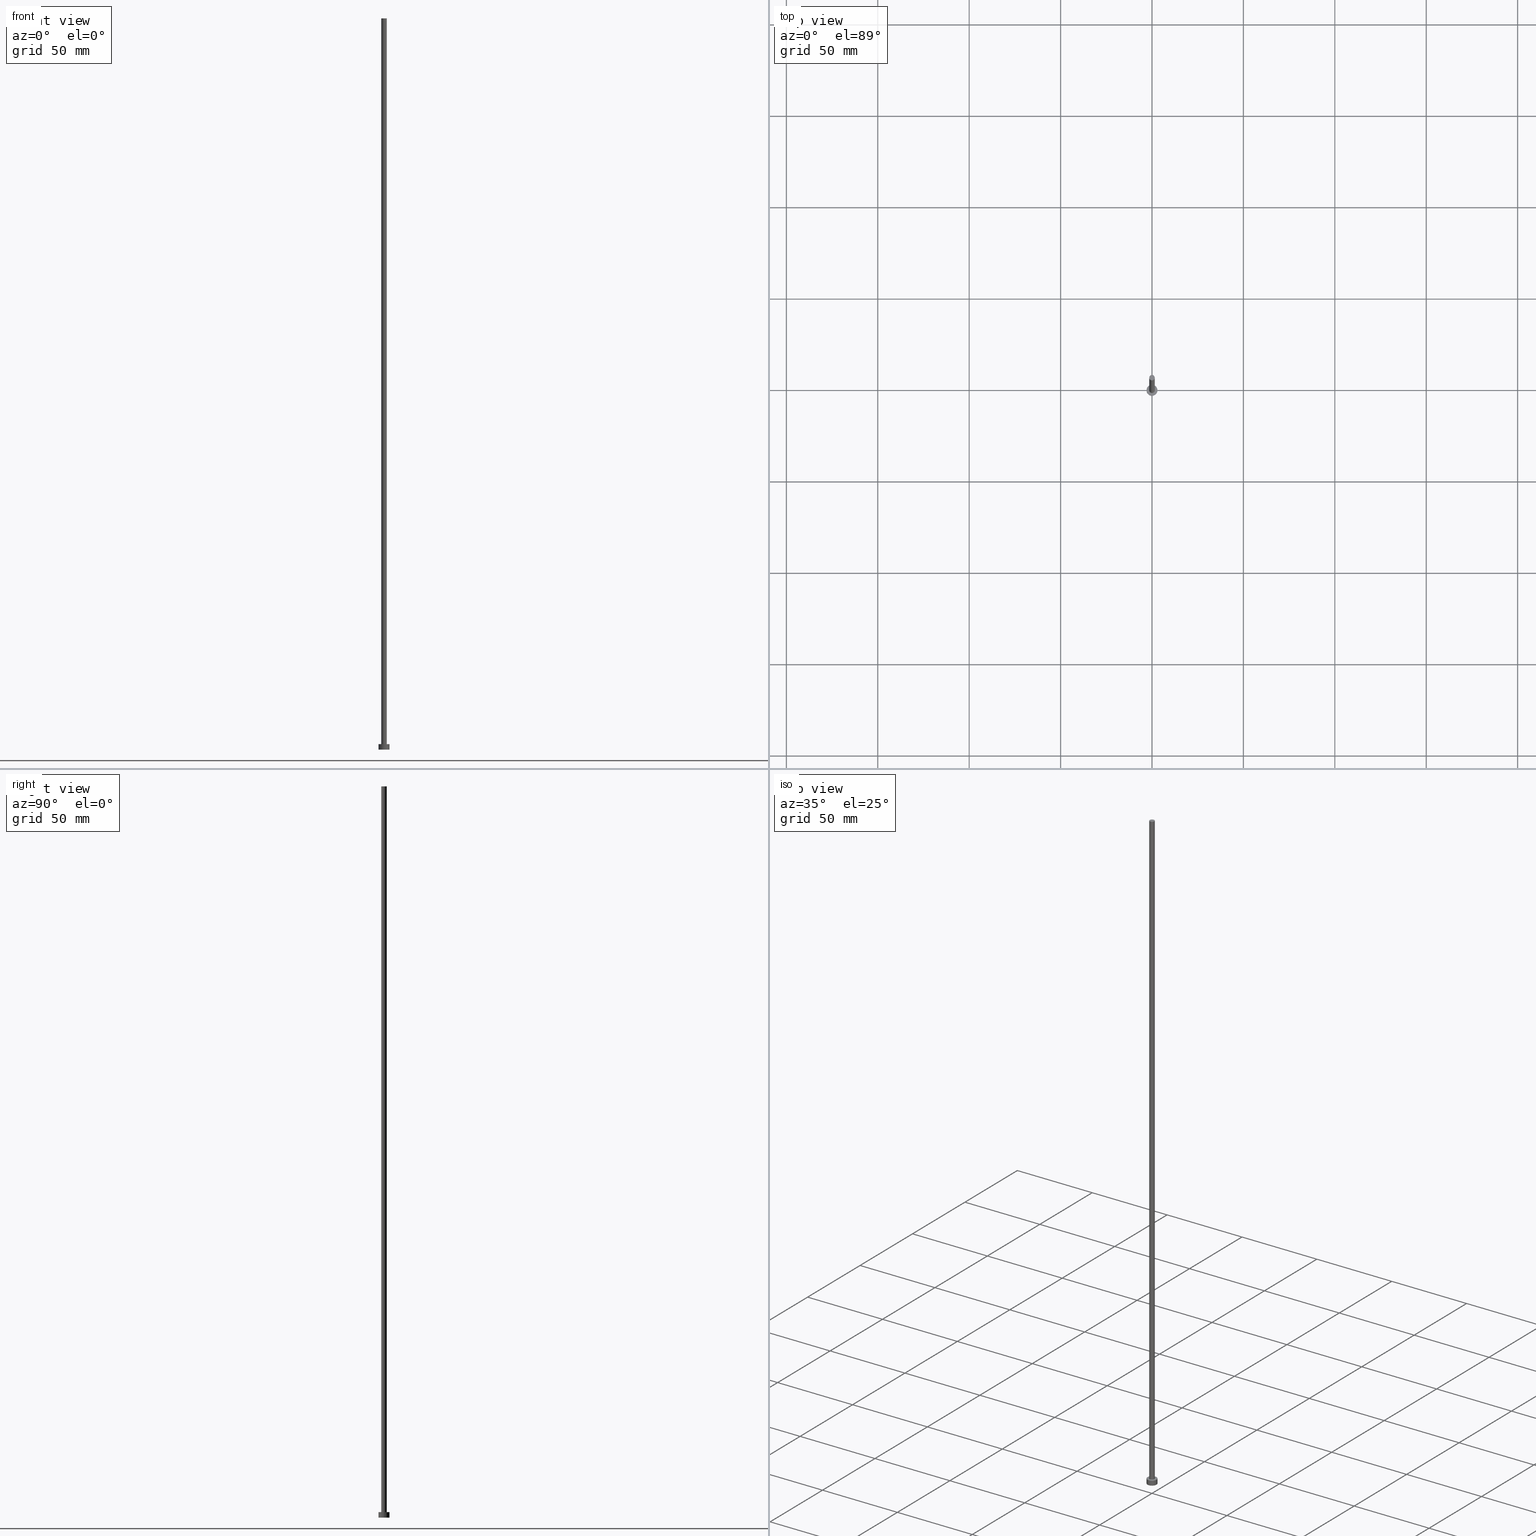
[diagram: canonical four-view strip — front | top / right | iso, engineering-drawing reading convention]
A machine part, canonical four-view strip (front | top / right | iso — engineering-drawing reading convention). The complete STEP part file that produces these views, byte-faithful:
ISO-10303-21;
HEADER;
FILE_DESCRIPTION (( 'STEP AP203' ),
    '1' );
FILE_NAME ('ec5e.STEP',
    '2023-02-13T14:26:13',
    ( '' ),
    ( '' ),
    'SwSTEP 2.0',
    'SolidWorks 2019',
    '' );
FILE_SCHEMA (( 'CONFIG_CONTROL_DESIGN' ));
ENDSEC;

DATA;
#1 = EDGE_LOOP ( 'NONE', ( #248, #34, #23, #120 ) ) ;
#2 = DIRECTION ( 'NONE',  ( 1.000000000000000000, 0.000000000000000000, 0.000000000000000000 ) ) ;
#3 = ORIENTED_EDGE ( 'NONE', *, *, #252, .T. ) ;
#4 = PRODUCT_RELATED_PRODUCT_CATEGORY ( 'detail', '', ( #121 ) ) ;
#5 = DIRECTION ( 'NONE',  ( 1.000000000000000000, 0.000000000000000000, -0.000000000000000000 ) ) ;
#6 = LOCAL_TIME ( 15, 26, 13.00000000000000000, #124 ) ;
#7 = COORDINATED_UNIVERSAL_TIME_OFFSET ( 1, 0, .AHEAD. ) ;
#8 = VERTEX_POINT ( 'NONE', #52 ) ;
#9 = APPROVAL_STATUS ( 'not_yet_approved' ) ;
#10 = VERTEX_POINT ( 'NONE', #224 ) ;
#11 = APPROVAL_STATUS ( 'not_yet_approved' ) ;
#12 = CLOSED_SHELL ( 'NONE', ( #140, #237, #18, #138, #64, #132, #181 ) ) ;
#13 = CC_DESIGN_PERSON_AND_ORGANIZATION_ASSIGNMENT ( #69, #53, ( #96 ) ) ;
#14 = PRODUCT_DEFINITION_FORMATION_WITH_SPECIFIED_SOURCE ( 'LIBOVOLN�', '', #121, .NOT_KNOWN. ) ;
#15 = CARTESIAN_POINT ( 'NONE',  ( 0.000000000000000000, 0.000000000000000000, 3.000000000000000000 ) ) ;
#16 = PERSON_AND_ORGANIZATION ( #162, #51 ) ;
#17 = CIRCLE ( 'NONE', #171, 3.000000000000000444 ) ;
#18 = ADVANCED_FACE ( 'NONE', ( #70 ), #59, .T. ) ;
#19 = AXIS2_PLACEMENT_3D ( 'NONE', #185, #146, #201 ) ;
#20 = CARTESIAN_POINT ( 'NONE',  ( 3.000000000000000444, 3.673940397442060361E-16, 3.000000000000000000 ) ) ;
#21 = CC_DESIGN_DATE_AND_TIME_ASSIGNMENT ( #89, #33, ( #154 ) ) ;
#22 = ORIENTED_EDGE ( 'NONE', *, *, #103, .F. ) ;
#23 = ORIENTED_EDGE ( 'NONE', *, *, #108, .T. ) ;
#24 = DIRECTION ( 'NONE',  ( -0.000000000000000000, -0.000000000000000000, -1.000000000000000000 ) ) ;
#25 = DATE_AND_TIME ( #196, #77 ) ;
#26 = ORIENTED_EDGE ( 'NONE', *, *, #44, .T. ) ;
#27 = PERSON_AND_ORGANIZATION ( #162, #51 ) ;
#28 = CARTESIAN_POINT ( 'NONE',  ( 0.000000000000000000, 0.000000000000000000, 0.000000000000000000 ) ) ;
#29 = MECHANICAL_CONTEXT ( 'NONE', #153, 'mechanical' ) ;
#30 = ORIENTED_EDGE ( 'NONE', *, *, #85, .T. ) ;
#31 = AXIS2_PLACEMENT_3D ( 'NONE', #190, #74, #112 ) ;
#32 = VECTOR ( 'NONE', #24, 1000.000000000000000 ) ;
#33 = DATE_TIME_ROLE ( 'classification_date' ) ;
#34 = ORIENTED_EDGE ( 'NONE', *, *, #57, .F. ) ;
#35 = EDGE_CURVE ( 'NONE', #8, #110, #134, .T. ) ;
#36 = DIRECTION ( 'NONE',  ( 1.000000000000000000, 0.000000000000000000, 0.000000000000000000 ) ) ;
#37 = DESIGN_CONTEXT ( 'detailed design', #183, 'design' ) ;
#38 = CARTESIAN_POINT ( 'NONE',  ( -1.500000000000000222, 0.000000000000000000, 3.000000000000000000 ) ) ;
#39 = SHAPE_DEFINITION_REPRESENTATION ( #195, #191 ) ;
#40 = CYLINDRICAL_SURFACE ( 'NONE', #250, 3.000000000000000444 ) ;
#41 = AXIS2_PLACEMENT_3D ( 'NONE', #136, #82, #2 ) ;
#42 = ORIENTED_EDGE ( 'NONE', *, *, #44, .F. ) ;
#43 = CARTESIAN_POINT ( 'NONE',  ( -3.000000000000000444, 0.000000000000000000, 3.000000000000000000 ) ) ;
#44 = EDGE_CURVE ( 'NONE', #169, #66, #168, .T. ) ;
#45 = ORIENTED_EDGE ( 'NONE', *, *, #108, .F. ) ;
#46 = CC_DESIGN_APPROVAL ( #113, ( #154 ) ) ;
#47 = DATE_AND_TIME ( #141, #65 ) ;
#48 = EDGE_LOOP ( 'NONE', ( #142, #92 ) ) ;
#49 = PERSON_AND_ORGANIZATION_ROLE ( 'classification_officer' ) ;
#50 = DIRECTION ( 'NONE',  ( 1.000000000000000000, 0.000000000000000000, 0.000000000000000000 ) ) ;
#51 = ORGANIZATION ( 'NEUR�EN�', 'NEUR�EN�', '' ) ;
#52 = CARTESIAN_POINT ( 'NONE',  ( 1.500000000000000222, 1.836970198721030181E-16, 3.000000000000000000 ) ) ;
#53 = PERSON_AND_ORGANIZATION_ROLE ( 'creator' ) ;
#54 = EDGE_LOOP ( 'NONE', ( #236, #218, #227, #45 ) ) ;
#55 = DATE_AND_TIME ( #225, #102 ) ;
#56 = DIRECTION ( 'NONE',  ( 0.000000000000000000, 0.000000000000000000, 1.000000000000000000 ) ) ;
#57 = EDGE_CURVE ( 'NONE', #221, #175, #107, .T. ) ;
#58 = AXIS2_PLACEMENT_3D ( 'NONE', #217, #178, #5 ) ;
#59 = CYLINDRICAL_SURFACE ( 'NONE', #31, 3.000000000000000444 ) ;
#60 = CYLINDRICAL_SURFACE ( 'NONE', #118, 1.500000000000000222 ) ;
#61 = EDGE_CURVE ( 'NONE', #66, #95, #91, .T. ) ;
#62 = DIRECTION ( 'NONE',  ( -1.000000000000000000, 0.000000000000000000, 0.000000000000000000 ) ) ;
#63 = CARTESIAN_POINT ( 'NONE',  ( 0.000000000000000000, 0.000000000000000000, 400.0000000000000000 ) ) ;
#64 = ADVANCED_FACE ( 'NONE', ( #182 ), #229, .F. ) ;
#65 = LOCAL_TIME ( 15, 26, 13.00000000000000000, #180 ) ;
#66 = VERTEX_POINT ( 'NONE', #163 ) ;
#67 = CARTESIAN_POINT ( 'NONE',  ( 1.500000000000000222, 1.836970198721030181E-16, 400.0000000000000000 ) ) ;
#68 = APPROVAL_DATE_TIME ( #55, #188 ) ;
#69 = PERSON_AND_ORGANIZATION ( #162, #51 ) ;
#70 = FACE_OUTER_BOUND ( 'NONE', #246, .T. ) ;
#71 = APPROVAL ( #11, 'NEUR�EN�' ) ;
#72 = DIRECTION ( 'NONE',  ( 1.000000000000000000, 0.000000000000000000, 0.000000000000000000 ) ) ;
#73 = APPROVAL_PERSON_ORGANIZATION ( #184, #71, #114 ) ;
#74 = DIRECTION ( 'NONE',  ( -0.000000000000000000, -0.000000000000000000, -1.000000000000000000 ) ) ;
#75 = DATE_AND_TIME ( #164, #6 ) ;
#76 = CC_DESIGN_PERSON_AND_ORGANIZATION_ASSIGNMENT ( #205, #49, ( #154 ) ) ;
#77 = LOCAL_TIME ( 15, 26, 13.00000000000000000, #122 ) ;
#78 = DIRECTION ( 'NONE',  ( -0.000000000000000000, -0.000000000000000000, -1.000000000000000000 ) ) ;
#79 = FACE_OUTER_BOUND ( 'NONE', #1, .T. ) ;
#80 = EDGE_CURVE ( 'NONE', #10, #169, #17, .T. ) ;
#81 = CARTESIAN_POINT ( 'NONE',  ( 0.000000000000000000, 0.000000000000000000, 400.0000000000000000 ) ) ;
#82 = DIRECTION ( 'NONE',  ( 0.000000000000000000, 0.000000000000000000, 1.000000000000000000 ) ) ;
#83 = EDGE_LOOP ( 'NONE', ( #123, #197 ) ) ;
#84 = VECTOR ( 'NONE', #78, 1000.000000000000000 ) ;
#85 = EDGE_CURVE ( 'NONE', #169, #10, #204, .T. ) ;
#86 = DIRECTION ( 'NONE',  ( 0.000000000000000000, 0.000000000000000000, 1.000000000000000000 ) ) ;
#87 = AXIS2_PLACEMENT_3D ( 'NONE', #63, #86, #106 ) ;
#88 = EDGE_LOOP ( 'NONE', ( #223, #3, #101, #42 ) ) ;
#89 = DATE_AND_TIME ( #111, #172 ) ;
#90 = DIRECTION ( 'NONE',  ( 1.000000000000000000, 0.000000000000000000, -0.000000000000000000 ) ) ;
#91 = CIRCLE ( 'NONE', #186, 3.000000000000000444 ) ;
#92 = ORIENTED_EDGE ( 'NONE', *, *, #157, .T. ) ;
#93 = DIRECTION ( 'NONE',  ( 1.000000000000000000, 0.000000000000000000, 0.000000000000000000 ) ) ;
#94 = APPROVAL_ROLE ( '' ) ;
#95 = VERTEX_POINT ( 'NONE', #165 ) ;
#96 = PRODUCT_DEFINITION ( 'NEZN�M�', '', #14, #37 ) ;
#97 = FACE_BOUND ( 'NONE', #83, .T. ) ;
#98 = APPROVAL_PERSON_ORGANIZATION ( #27, #113, #94 ) ;
#99 = CARTESIAN_POINT ( 'NONE',  ( 0.000000000000000000, 0.000000000000000000, 0.000000000000000000 ) ) ;
#100 = ORIENTED_EDGE ( 'NONE', *, *, #61, .F. ) ;
#101 = ORIENTED_EDGE ( 'NONE', *, *, #103, .T. ) ;
#102 = LOCAL_TIME ( 15, 26, 13.00000000000000000, #7 ) ;
#103 = EDGE_CURVE ( 'NONE', #95, #66, #137, .T. ) ;
#104 =( LENGTH_UNIT ( ) NAMED_UNIT ( * ) SI_UNIT ( .MILLI., .METRE. ) );
#105 = EDGE_LOOP ( 'NONE', ( #30, #177 ) ) ;
#106 = DIRECTION ( 'NONE',  ( 1.000000000000000000, 0.000000000000000000, 0.000000000000000000 ) ) ;
#107 = CIRCLE ( 'NONE', #249, 1.500000000000000222 ) ;
#108 = EDGE_CURVE ( 'NONE', #221, #110, #133, .T. ) ;
#109 = APPROVAL_ROLE ( '' ) ;
#110 = VERTEX_POINT ( 'NONE', #38 ) ;
#111 = CALENDAR_DATE ( 2023, 13, 2 ) ;
#112 = DIRECTION ( 'NONE',  ( -1.000000000000000000, 0.000000000000000000, 0.000000000000000000 ) ) ;
#113 = APPROVAL ( #115, 'NEUR�EN�' ) ;
#114 = APPROVAL_ROLE ( '' ) ;
#115 = APPROVAL_STATUS ( 'not_yet_approved' ) ;
#116 = VECTOR ( 'NONE', #242, 1000.000000000000000 ) ;
#117 = CARTESIAN_POINT ( 'NONE',  ( 0.000000000000000000, 0.000000000000000000, 400.0000000000000000 ) ) ;
#118 = AXIS2_PLACEMENT_3D ( 'NONE', #117, #212, #174 ) ;
#119 = DIRECTION ( 'NONE',  ( -0.000000000000000000, -0.000000000000000000, -1.000000000000000000 ) ) ;
#120 = ORIENTED_EDGE ( 'NONE', *, *, #226, .T. ) ;
#121 = PRODUCT ( 'ec5e', 'ec5e', '', ( #29 ) ) ;
#122 = COORDINATED_UNIVERSAL_TIME_OFFSET ( 1, 0, .AHEAD. ) ;
#123 = ORIENTED_EDGE ( 'NONE', *, *, #226, .F. ) ;
#124 = COORDINATED_UNIVERSAL_TIME_OFFSET ( 1, 0, .AHEAD. ) ;
#125 = DIRECTION ( 'NONE',  ( 0.000000000000000000, 0.000000000000000000, 1.000000000000000000 ) ) ;
#126 = PERSON_AND_ORGANIZATION_ROLE ( 'design_owner' ) ;
#127 = DIRECTION ( 'NONE',  ( 1.000000000000000000, 0.000000000000000000, 0.000000000000000000 ) ) ;
#128 = CARTESIAN_POINT ( 'NONE',  ( 0.000000000000000000, 0.000000000000000000, 0.000000000000000000 ) ) ;
#129 = SECURITY_CLASSIFICATION_LEVEL ( 'unclassified' ) ;
#130 = DIRECTION ( 'NONE',  ( 0.000000000000000000, 0.000000000000000000, 1.000000000000000000 ) ) ;
#131 = CIRCLE ( 'NONE', #87, 1.500000000000000222 ) ;
#132 = ADVANCED_FACE ( 'NONE', ( #79 ), #251, .T. ) ;
#133 = LINE ( 'NONE', #254, #84 ) ;
#134 = CIRCLE ( 'NONE', #214, 1.500000000000000222 ) ;
#135 = CC_DESIGN_PERSON_AND_ORGANIZATION_ASSIGNMENT ( #245, #189, ( #14 ) ) ;
#136 = CARTESIAN_POINT ( 'NONE',  ( 0.000000000000000000, 0.000000000000000000, 3.000000000000000000 ) ) ;
#137 = CIRCLE ( 'NONE', #192, 3.000000000000000444 ) ;
#138 = ADVANCED_FACE ( 'NONE', ( #97, #208 ), #211, .T. ) ;
#139 = CIRCLE ( 'NONE', #41, 1.500000000000000222 ) ;
#140 = ADVANCED_FACE ( 'NONE', ( #232 ), #60, .T. ) ;
#141 = CALENDAR_DATE ( 2023, 13, 2 ) ;
#142 = ORIENTED_EDGE ( 'NONE', *, *, #57, .T. ) ;
#143 = APPROVAL_DATE_TIME ( #75, #71 ) ;
#144 = CARTESIAN_POINT ( 'NONE',  ( 0.000000000000000000, 0.000000000000000000, 400.0000000000000000 ) ) ;
#145 = AXIS2_PLACEMENT_3D ( 'NONE', #210, #155, #233 ) ;
#146 = DIRECTION ( 'NONE',  ( 0.000000000000000000, 0.000000000000000000, 1.000000000000000000 ) ) ;
#147 = CC_DESIGN_APPROVAL ( #188, ( #96 ) ) ;
#148 =( NAMED_UNIT ( * ) PLANE_ANGLE_UNIT ( ) SI_UNIT ( $, .RADIAN. ) );
#149 = DIRECTION ( 'NONE',  ( 0.000000000000000000, 0.000000000000000000, 1.000000000000000000 ) ) ;
#150 = AXIS2_PLACEMENT_3D ( 'NONE', #187, #167, #93 ) ;
#151 = DIRECTION ( 'NONE',  ( -0.000000000000000000, -0.000000000000000000, -1.000000000000000000 ) ) ;
#152 = EDGE_CURVE ( 'NONE', #175, #8, #239, .T. ) ;
#153 = APPLICATION_CONTEXT ( 'configuration controlled 3d designs of mechanical parts and assemblies' ) ;
#154 = SECURITY_CLASSIFICATION ( '', '', #129 ) ;
#155 = DIRECTION ( 'NONE',  ( 0.000000000000000000, 0.000000000000000000, 1.000000000000000000 ) ) ;
#156 = ORIENTED_EDGE ( 'NONE', *, *, #252, .F. ) ;
#157 = EDGE_CURVE ( 'NONE', #175, #221, #131, .T. ) ;
#158 = ORIENTED_EDGE ( 'NONE', *, *, #61, .T. ) ;
#159 = CARTESIAN_POINT ( 'NONE',  ( 0.000000000000000000, 0.000000000000000000, 3.000000000000000000 ) ) ;
#160 = CARTESIAN_POINT ( 'NONE',  ( -1.500000000000000222, 0.000000000000000000, 400.0000000000000000 ) ) ;
#161 = CARTESIAN_POINT ( 'NONE',  ( -3.000000000000000444, 0.000000000000000000, 3.000000000000000000 ) ) ;
#162 = PERSON ( 'NEUR�EN�', 'NEUR�EN�', 'NEUR�EN�', ('NEUR�EN�'), ('NEUR�EN�'), ('NEUR�EN�') ) ;
#163 = CARTESIAN_POINT ( 'NONE',  ( -3.000000000000000444, 0.000000000000000000, 0.000000000000000000 ) ) ;
#164 = CALENDAR_DATE ( 2023, 13, 2 ) ;
#165 = CARTESIAN_POINT ( 'NONE',  ( 3.000000000000000444, 3.673940397442060361E-16, 0.000000000000000000 ) ) ;
#166 =( GEOMETRIC_REPRESENTATION_CONTEXT ( 3 ) GLOBAL_UNCERTAINTY_ASSIGNED_CONTEXT ( ( #231 ) ) GLOBAL_UNIT_ASSIGNED_CONTEXT ( ( #104, #148, #240 ) ) REPRESENTATION_CONTEXT ( 'NONE', 'WORKASPACE' ) );
#167 = DIRECTION ( 'NONE',  ( 0.000000000000000000, 0.000000000000000000, 1.000000000000000000 ) ) ;
#168 = LINE ( 'NONE', #161, #116 ) ;
#169 = VERTEX_POINT ( 'NONE', #43 ) ;
#170 = APPROVAL_PERSON_ORGANIZATION ( #200, #188, #109 ) ;
#171 = AXIS2_PLACEMENT_3D ( 'NONE', #243, #206, #72 ) ;
#172 = LOCAL_TIME ( 15, 26, 13.00000000000000000, #198 ) ;
#173 = DIRECTION ( 'NONE',  ( 0.000000000000000000, 0.000000000000000000, 1.000000000000000000 ) ) ;
#174 = DIRECTION ( 'NONE',  ( -1.000000000000000000, 0.000000000000000000, 0.000000000000000000 ) ) ;
#175 = VERTEX_POINT ( 'NONE', #194 ) ;
#176 = FACE_OUTER_BOUND ( 'NONE', #48, .T. ) ;
#177 = ORIENTED_EDGE ( 'NONE', *, *, #80, .T. ) ;
#178 = DIRECTION ( 'NONE',  ( 0.000000000000000000, 0.000000000000000000, 1.000000000000000000 ) ) ;
#179 = CC_DESIGN_APPROVAL ( #71, ( #14 ) ) ;
#180 = COORDINATED_UNIVERSAL_TIME_OFFSET ( 1, 0, .AHEAD. ) ;
#181 = ADVANCED_FACE ( 'NONE', ( #176 ), #219, .T. ) ;
#182 = FACE_OUTER_BOUND ( 'NONE', #230, .T. ) ;
#183 = APPLICATION_CONTEXT ( 'configuration controlled 3d designs of mechanical parts and assemblies' ) ;
#184 = PERSON_AND_ORGANIZATION ( #162, #51 ) ;
#185 = CARTESIAN_POINT ( 'NONE',  ( 0.000000000000000000, 0.000000000000000000, 3.000000000000000000 ) ) ;
#186 = AXIS2_PLACEMENT_3D ( 'NONE', #28, #149, #127 ) ;
#187 = CARTESIAN_POINT ( 'NONE',  ( 0.000000000000000000, 0.000000000000000000, 0.000000000000000000 ) ) ;
#188 = APPROVAL ( #9, 'NEUR�EN�' ) ;
#189 = PERSON_AND_ORGANIZATION_ROLE ( 'creator' ) ;
#190 = CARTESIAN_POINT ( 'NONE',  ( 0.000000000000000000, 0.000000000000000000, 3.000000000000000000 ) ) ;
#191 = ADVANCED_BREP_SHAPE_REPRESENTATION ( 'ec5e', ( #207, #150 ), #166 ) ;
#192 = AXIS2_PLACEMENT_3D ( 'NONE', #99, #173, #36 ) ;
#193 = LINE ( 'NONE', #20, #244 ) ;
#194 = CARTESIAN_POINT ( 'NONE',  ( 1.500000000000000222, 1.836970198721030181E-16, 400.0000000000000000 ) ) ;
#195 = PRODUCT_DEFINITION_SHAPE ( 'NONE', 'NONE',  #96 ) ;
#196 = CALENDAR_DATE ( 2023, 13, 2 ) ;
#197 = ORIENTED_EDGE ( 'NONE', *, *, #35, .F. ) ;
#198 = COORDINATED_UNIVERSAL_TIME_OFFSET ( 1, 0, .AHEAD. ) ;
#199 = DIRECTION ( 'NONE',  ( 1.000000000000000000, 0.000000000000000000, 0.000000000000000000 ) ) ;
#200 = PERSON_AND_ORGANIZATION ( #162, #51 ) ;
#201 = DIRECTION ( 'NONE',  ( 1.000000000000000000, 0.000000000000000000, 0.000000000000000000 ) ) ;
#202 = DATE_TIME_ROLE ( 'creation_date' ) ;
#203 = CC_DESIGN_DATE_AND_TIME_ASSIGNMENT ( #47, #202, ( #96 ) ) ;
#204 = CIRCLE ( 'NONE', #19, 3.000000000000000444 ) ;
#205 = PERSON_AND_ORGANIZATION ( #162, #51 ) ;
#206 = DIRECTION ( 'NONE',  ( 0.000000000000000000, 0.000000000000000000, 1.000000000000000000 ) ) ;
#207 = MANIFOLD_SOLID_BREP ( 'P�idat vysunut�m3', #12 ) ;
#208 = FACE_OUTER_BOUND ( 'NONE', #105, .T. ) ;
#209 = CC_DESIGN_PERSON_AND_ORGANIZATION_ASSIGNMENT ( #16, #126, ( #121 ) ) ;
#210 = CARTESIAN_POINT ( 'NONE',  ( 0.000000000000000000, 0.000000000000000000, 3.000000000000000000 ) ) ;
#211 = PLANE ( 'NONE',  #145 ) ;
#212 = DIRECTION ( 'NONE',  ( -0.000000000000000000, -0.000000000000000000, -1.000000000000000000 ) ) ;
#213 = CC_DESIGN_PERSON_AND_ORGANIZATION_ASSIGNMENT ( #228, #222, ( #14 ) ) ;
#214 = AXIS2_PLACEMENT_3D ( 'NONE', #15, #130, #50 ) ;
#215 = FACE_OUTER_BOUND ( 'NONE', #88, .T. ) ;
#216 = CC_DESIGN_SECURITY_CLASSIFICATION ( #154, ( #14 ) ) ;
#217 = CARTESIAN_POINT ( 'NONE',  ( 0.000000000000000000, 0.000000000000000000, 400.0000000000000000 ) ) ;
#218 = ORIENTED_EDGE ( 'NONE', *, *, #152, .T. ) ;
#219 = PLANE ( 'NONE',  #58 ) ;
#220 = AXIS2_PLACEMENT_3D ( 'NONE', #128, #56, #90 ) ;
#221 = VERTEX_POINT ( 'NONE', #160 ) ;
#222 = PERSON_AND_ORGANIZATION_ROLE ( 'design_supplier' ) ;
#223 = ORIENTED_EDGE ( 'NONE', *, *, #80, .F. ) ;
#224 = CARTESIAN_POINT ( 'NONE',  ( 3.000000000000000444, 3.673940397442060361E-16, 3.000000000000000000 ) ) ;
#225 = CALENDAR_DATE ( 2023, 13, 2 ) ;
#226 = EDGE_CURVE ( 'NONE', #110, #8, #139, .T. ) ;
#227 = ORIENTED_EDGE ( 'NONE', *, *, #35, .T. ) ;
#228 = PERSON_AND_ORGANIZATION ( #162, #51 ) ;
#229 = PLANE ( 'NONE',  #220 ) ;
#230 = EDGE_LOOP ( 'NONE', ( #100, #22 ) ) ;
#231 = UNCERTAINTY_MEASURE_WITH_UNIT (LENGTH_MEASURE( 1.000000000000000082E-05 ), #104, 'distance_accuracy_value', 'NONE');
#232 = FACE_OUTER_BOUND ( 'NONE', #54, .T. ) ;
#233 = DIRECTION ( 'NONE',  ( 1.000000000000000000, 0.000000000000000000, -0.000000000000000000 ) ) ;
#234 = DIRECTION ( 'NONE',  ( -0.000000000000000000, -0.000000000000000000, -1.000000000000000000 ) ) ;
#235 = ORIENTED_EDGE ( 'NONE', *, *, #85, .F. ) ;
#236 = ORIENTED_EDGE ( 'NONE', *, *, #157, .F. ) ;
#237 = ADVANCED_FACE ( 'NONE', ( #215 ), #40, .T. ) ;
#238 = DIRECTION ( 'NONE',  ( -1.000000000000000000, 0.000000000000000000, 0.000000000000000000 ) ) ;
#239 = LINE ( 'NONE', #67, #32 ) ;
#240 =( NAMED_UNIT ( * ) SI_UNIT ( $, .STERADIAN. ) SOLID_ANGLE_UNIT ( ) );
#241 = APPLICATION_PROTOCOL_DEFINITION ( 'international standard', 'config_control_design', 1994, #183 ) ;
#242 = DIRECTION ( 'NONE',  ( -0.000000000000000000, -0.000000000000000000, -1.000000000000000000 ) ) ;
#243 = CARTESIAN_POINT ( 'NONE',  ( 0.000000000000000000, 0.000000000000000000, 3.000000000000000000 ) ) ;
#244 = VECTOR ( 'NONE', #234, 1000.000000000000000 ) ;
#245 = PERSON_AND_ORGANIZATION ( #162, #51 ) ;
#246 = EDGE_LOOP ( 'NONE', ( #156, #235, #26, #158 ) ) ;
#247 = APPLICATION_PROTOCOL_DEFINITION ( 'international standard', 'config_control_design', 1994, #153 ) ;
#248 = ORIENTED_EDGE ( 'NONE', *, *, #152, .F. ) ;
#249 = AXIS2_PLACEMENT_3D ( 'NONE', #144, #125, #199 ) ;
#250 = AXIS2_PLACEMENT_3D ( 'NONE', #159, #119, #238 ) ;
#251 = CYLINDRICAL_SURFACE ( 'NONE', #253, 1.500000000000000222 ) ;
#252 = EDGE_CURVE ( 'NONE', #10, #95, #193, .T. ) ;
#253 = AXIS2_PLACEMENT_3D ( 'NONE', #81, #151, #62 ) ;
#254 = CARTESIAN_POINT ( 'NONE',  ( -1.500000000000000222, 0.000000000000000000, 400.0000000000000000 ) ) ;
#255 = APPROVAL_DATE_TIME ( #25, #113 ) ;
ENDSEC;
END-ISO-10303-21;
